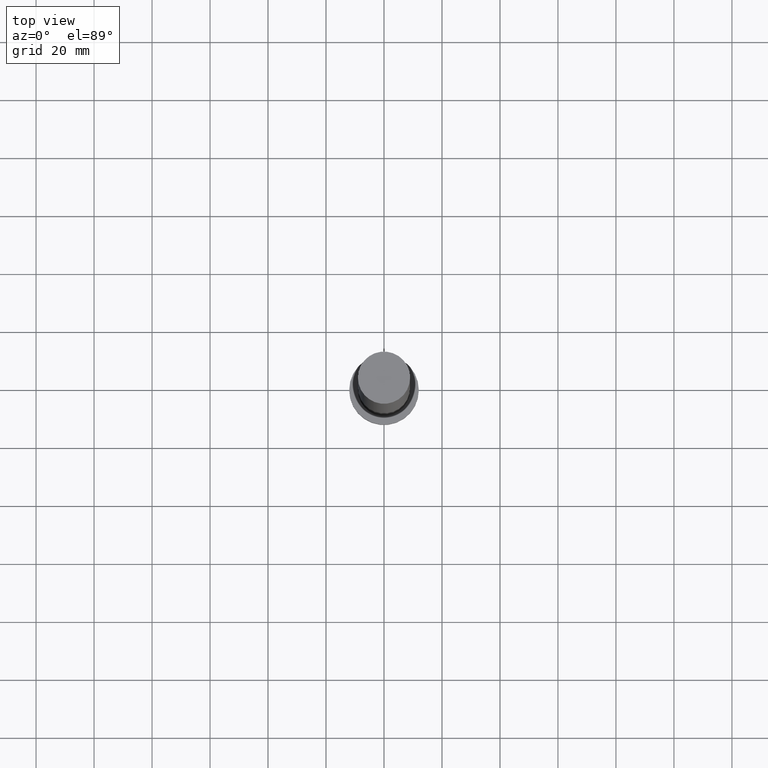
[diagram: clean part render]
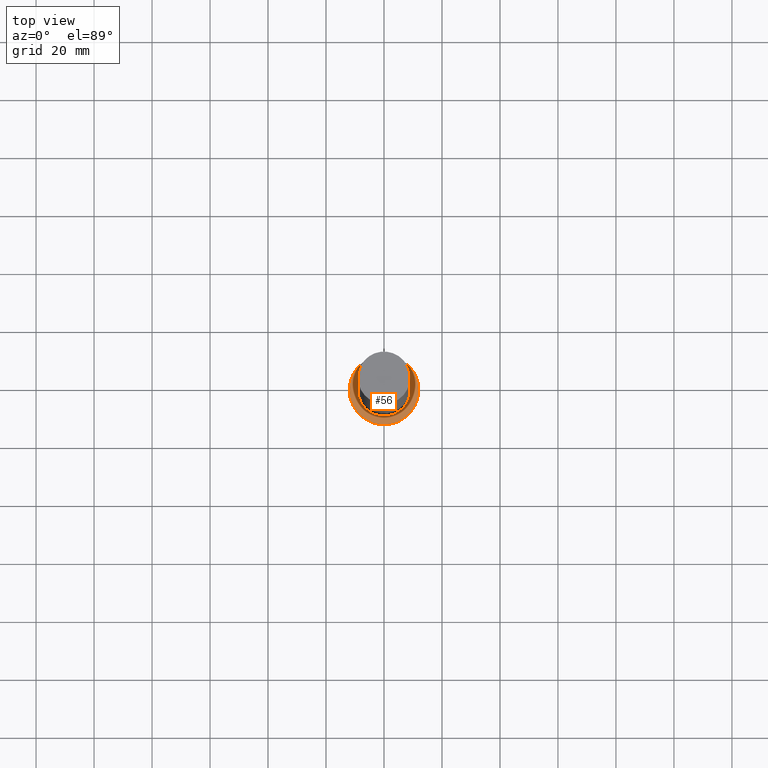
[diagram: same view with one face highlighted and labeled with its STEP entity id]
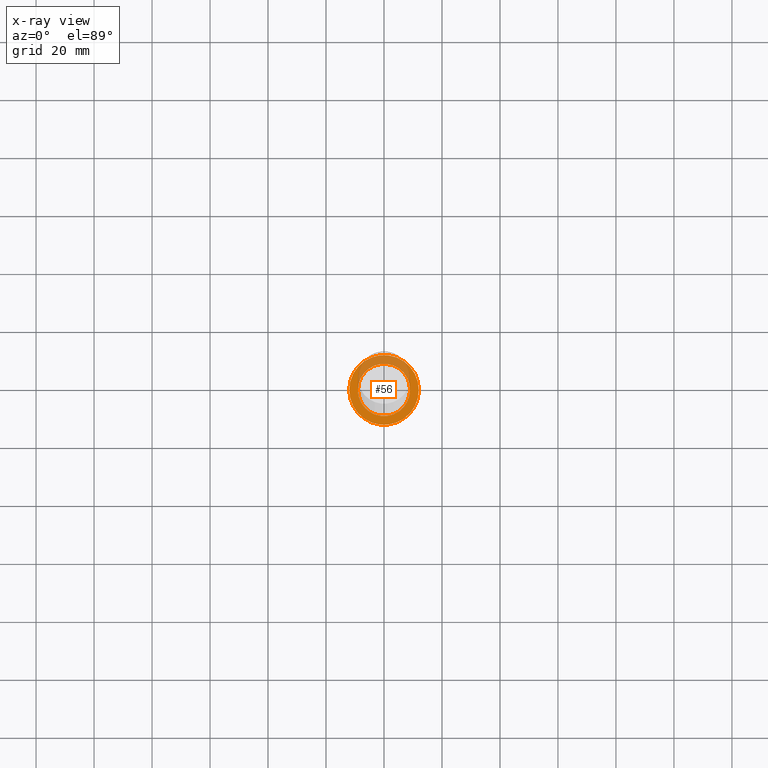
[diagram: x-ray of the same camera — body ghosted, the highlighted face saturated]
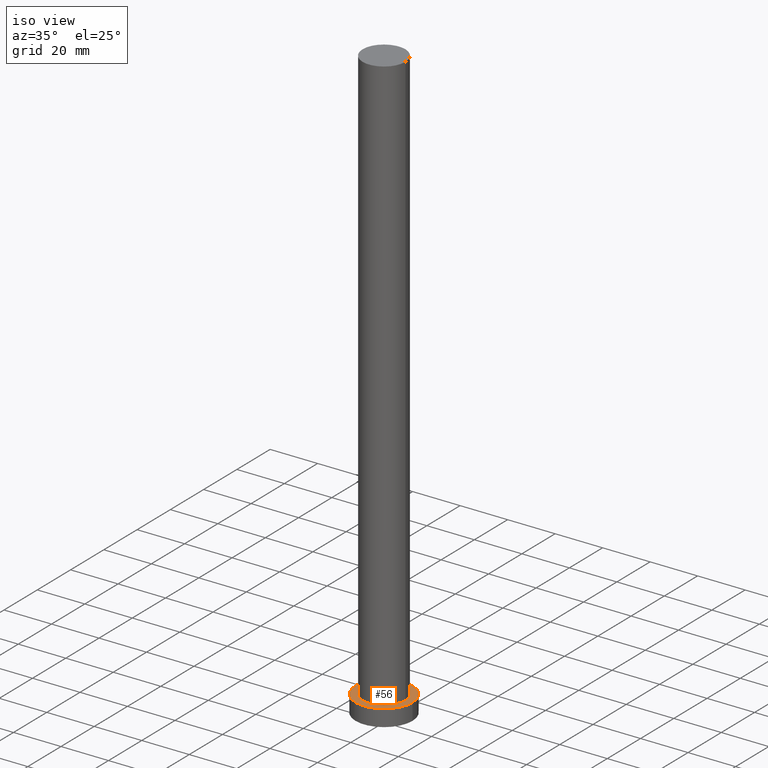
[diagram: same view with one face highlighted and labeled with its STEP entity id]
A machine part, top view. The second image highlights one B-rep face of the part: STEP entity #56.
The next image is the same camera in x-ray: the body ghosted, the highlighted face saturated — about 32% of this face is hidden behind the body in this view.
A second angle (iso view) of the same face is appended — the face is thin or edge-on in the first view.
In plain terms, the highlighted planar face has unit normal (0, 0, 1).
Its self-contained STEP definition (entity closure, byte-faithful):
#1 = CIRCLE ( 'NONE', #146, 9.000000000000000000 ) ;
#3 = CARTESIAN_POINT ( 'NONE',  ( 9.000000000000000000, 1.102182119232617714E-15, 7.000000000000000000 ) ) ;
#4 = CIRCLE ( 'NONE', #73, 12.00000000000000178 ) ;
#5 = CARTESIAN_POINT ( 'NONE',  ( 0.000000000000000000, 0.000000000000000000, 7.000000000000000000 ) ) ;
#18 = DIRECTION ( 'NONE',  ( 1.000000000000000000, 0.000000000000000000, -0.000000000000000000 ) ) ;
#28 = CIRCLE ( 'NONE', #91, 9.000000000000000000 ) ;
#29 = EDGE_LOOP ( 'NONE', ( #164, #107 ) ) ;
#41 = CARTESIAN_POINT ( 'NONE',  ( -9.000000000000000000, 0.000000000000000000, 7.000000000000000000 ) ) ;
#55 = DIRECTION ( 'NONE',  ( 0.000000000000000000, 0.000000000000000000, 1.000000000000000000 ) ) ;
#56 = ADVANCED_FACE ( 'NONE', ( #134, #197 ), #155, .T. ) ;
#58 = CARTESIAN_POINT ( 'NONE',  ( 0.000000000000000000, 0.000000000000000000, 7.000000000000000000 ) ) ;
#60 = ORIENTED_EDGE ( 'NONE', *, *, #231, .F. ) ;
#73 = AXIS2_PLACEMENT_3D ( 'NONE', #5, #160, #156 ) ;
#85 = DIRECTION ( 'NONE',  ( 0.000000000000000000, 0.000000000000000000, 1.000000000000000000 ) ) ;
#91 = AXIS2_PLACEMENT_3D ( 'NONE', #184, #222, #102 ) ;
#101 = CIRCLE ( 'NONE', #115, 12.00000000000000178 ) ;
#102 = DIRECTION ( 'NONE',  ( 1.000000000000000000, 0.000000000000000000, 0.000000000000000000 ) ) ;
#107 = ORIENTED_EDGE ( 'NONE', *, *, #191, .T. ) ;
#114 = EDGE_CURVE ( 'NONE', #244, #193, #101, .T. ) ;
#115 = AXIS2_PLACEMENT_3D ( 'NONE', #58, #218, #195 ) ;
#119 = CARTESIAN_POINT ( 'NONE',  ( 0.000000000000000000, 0.000000000000000000, 7.000000000000000000 ) ) ;
#126 = DIRECTION ( 'NONE',  ( 1.000000000000000000, 0.000000000000000000, 0.000000000000000000 ) ) ;
#134 = FACE_BOUND ( 'NONE', #186, .T. ) ;
#141 = CARTESIAN_POINT ( 'NONE',  ( 0.000000000000000000, 0.000000000000000000, 7.000000000000000000 ) ) ;
#145 = VERTEX_POINT ( 'NONE', #3 ) ;
#146 = AXIS2_PLACEMENT_3D ( 'NONE', #141, #85, #126 ) ;
#149 = VERTEX_POINT ( 'NONE', #41 ) ;
#155 = PLANE ( 'NONE',  #239 ) ;
#156 = DIRECTION ( 'NONE',  ( 1.000000000000000000, 0.000000000000000000, 0.000000000000000000 ) ) ;
#160 = DIRECTION ( 'NONE',  ( 0.000000000000000000, 0.000000000000000000, 1.000000000000000000 ) ) ;
#164 = ORIENTED_EDGE ( 'NONE', *, *, #114, .T. ) ;
#184 = CARTESIAN_POINT ( 'NONE',  ( 0.000000000000000000, 0.000000000000000000, 7.000000000000000000 ) ) ;
#186 = EDGE_LOOP ( 'NONE', ( #60, #207 ) ) ;
#191 = EDGE_CURVE ( 'NONE', #193, #244, #4, .T. ) ;
#193 = VERTEX_POINT ( 'NONE', #233 ) ;
#195 = DIRECTION ( 'NONE',  ( 1.000000000000000000, 0.000000000000000000, 0.000000000000000000 ) ) ;
#197 = FACE_OUTER_BOUND ( 'NONE', #29, .T. ) ;
#198 = CARTESIAN_POINT ( 'NONE',  ( -12.00000000000000178, 0.000000000000000000, 7.000000000000000000 ) ) ;
#207 = ORIENTED_EDGE ( 'NONE', *, *, #240, .F. ) ;
#218 = DIRECTION ( 'NONE',  ( 0.000000000000000000, 0.000000000000000000, 1.000000000000000000 ) ) ;
#222 = DIRECTION ( 'NONE',  ( 0.000000000000000000, 0.000000000000000000, 1.000000000000000000 ) ) ;
#231 = EDGE_CURVE ( 'NONE', #149, #145, #1, .T. ) ;
#233 = CARTESIAN_POINT ( 'NONE',  ( 12.00000000000000178, 1.469576158976824144E-15, 7.000000000000000000 ) ) ;
#239 = AXIS2_PLACEMENT_3D ( 'NONE', #119, #55, #18 ) ;
#240 = EDGE_CURVE ( 'NONE', #145, #149, #28, .T. ) ;
#244 = VERTEX_POINT ( 'NONE', #198 ) ;